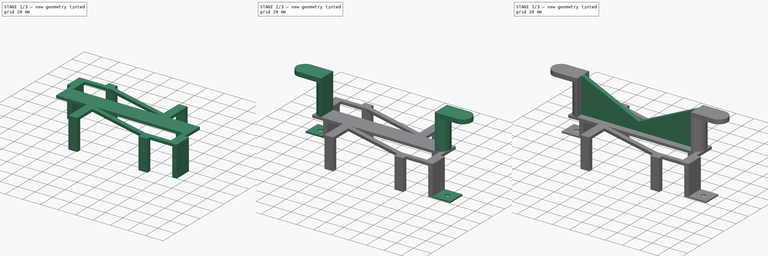
[diagram: build sequence overview — one tinted view per stage of 3, left to right]
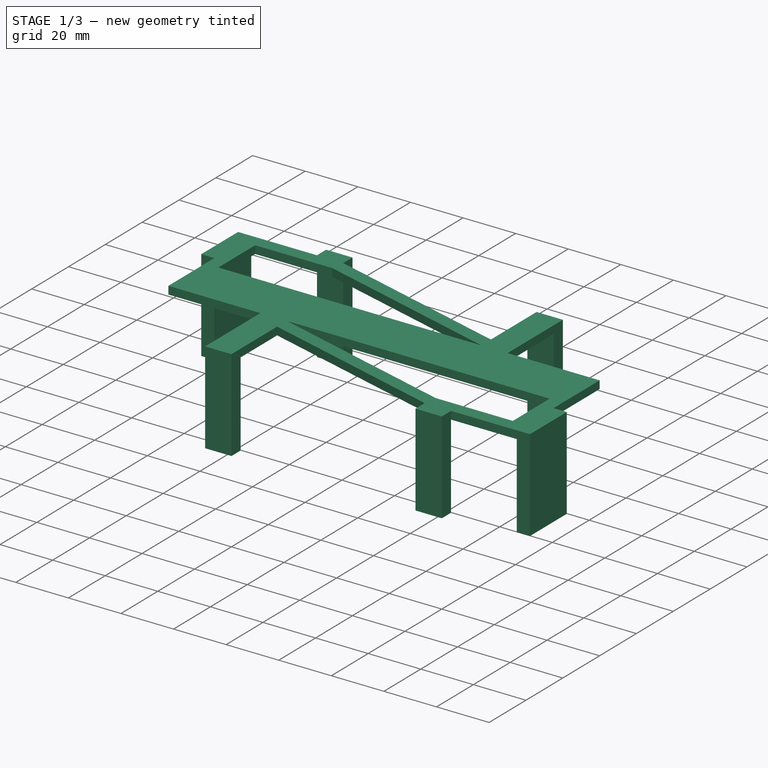
[diagram: stage 1 of 3 — iso view after this stage's code; geometry added in this stage tinted green]
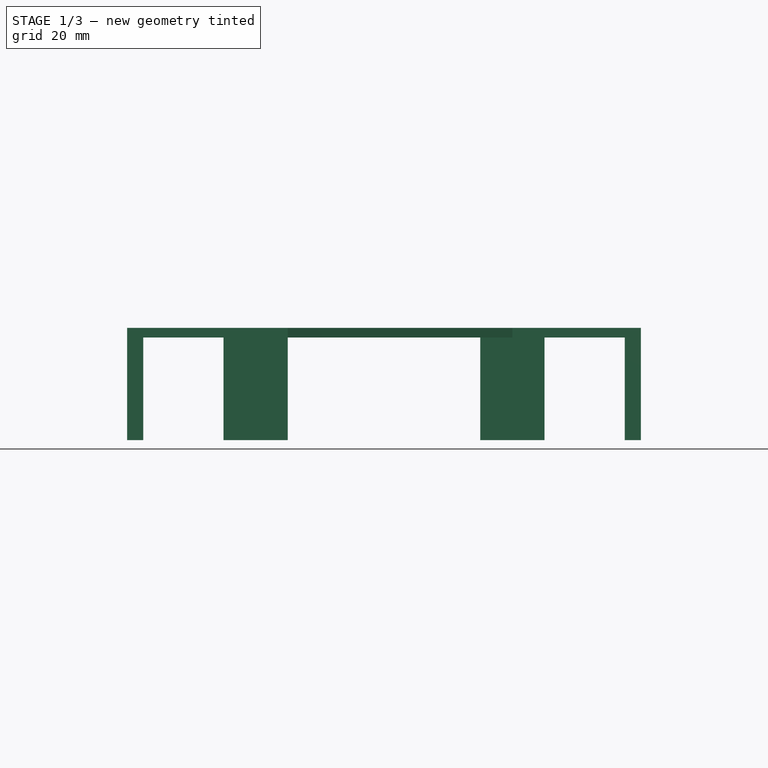
[diagram: stage 1 of 3 — front view after this stage's code; geometry added in this stage tinted green]
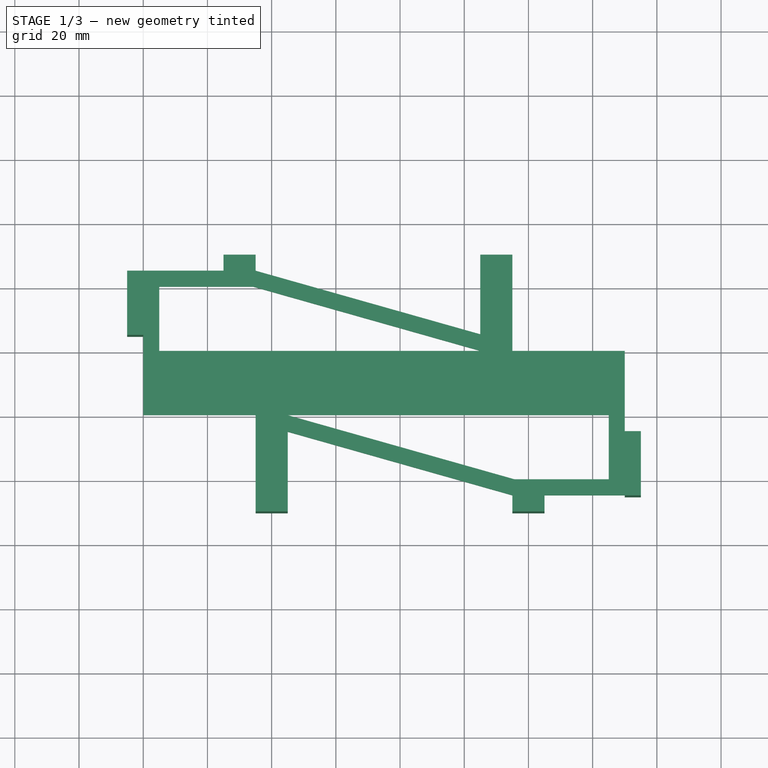
[diagram: stage 1 of 3 — top view after this stage's code; geometry added in this stage tinted green]
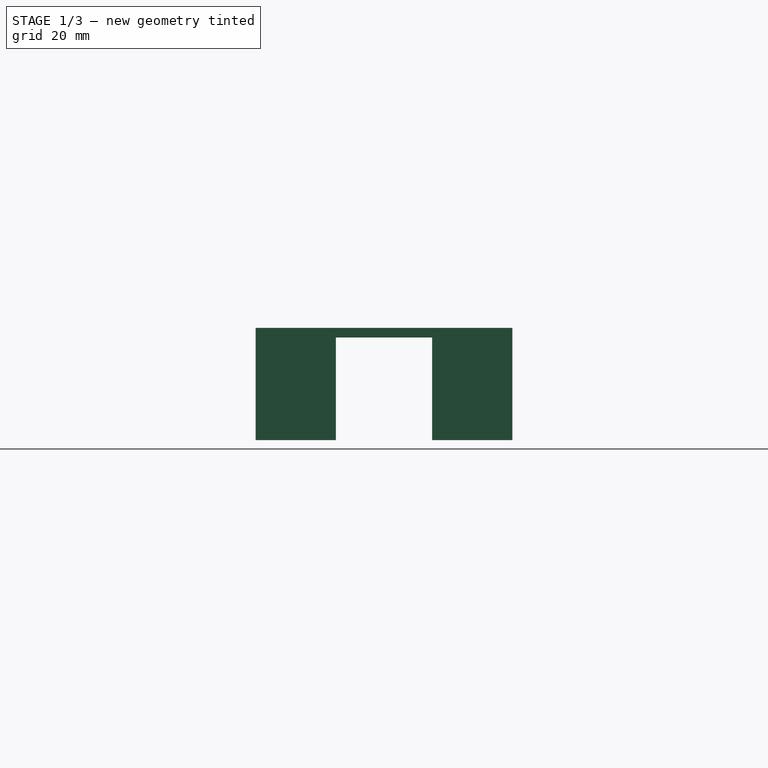
[diagram: stage 1 of 3 — right view after this stage's code; geometry added in this stage tinted green]
FCSTD DOCUMENT  (FreeCAD 0.20R)
Label: dockstation_powersupply_holder
License: All rights reserved
LicenseURL: http://en.wikipedia.org/wiki/All_rights_reserved
objects: Sketcher::SketchObject×7, PartDesign::Pad×7, PartDesign::Body×1
note: 22 computed .brp shape members not serialized (recipe doc carries the construction recipe); baked Part::Feature solids carry a one-line shape summary decoded from their .brp

FEATURE [Sketcher::SketchObject] Sketch
  FullyConstrained = false
  MapMode = 5
  Support = -> [XY_Plane]
  sketch-geometry (37):
    g0: LineSegment StartX=0 StartY=0 StartZ=0 EndX=0 EndY=45 EndZ=0
    g1: LineSegment StartX=0 StartY=45 StartZ=0 EndX=35 EndY=45 EndZ=0
    g2: LineSegment StartX=115 StartY=20 StartZ=0 EndX=150 EndY=20 EndZ=0
    g3: LineSegment StartX=150 StartY=20 StartZ=0 EndX=150 EndY=-25 EndZ=0
    g4: LineSegment StartX=150 StartY=-25 StartZ=0 EndX=115 EndY=-25 EndZ=0
    g5: LineSegment StartX=35 StartY=0 StartZ=0 EndX=0 EndY=0 EndZ=0
    g6: LineSegment StartX=0 StartY=10.0131 StartZ=0 EndX=150 EndY=10.0131 EndZ=0
    g7: LineSegment StartX=115 StartY=-25 StartZ=0 EndX=0 EndY=-25 EndZ=0
    g8: LineSegment StartX=0 StartY=-25 StartZ=0 EndX=0 EndY=0 EndZ=0
    g9: LineSegment StartX=5 StartY=40 StartZ=0 EndX=5 EndY=20 EndZ=0
    g10: LineSegment StartX=5 StartY=20 StartZ=0 EndX=105 EndY=20 EndZ=0
    g11: LineSegment StartX=105 StartY=20 StartZ=0 EndX=34.3063 EndY=40 EndZ=0
    g12: LineSegment StartX=34.3063 StartY=40 StartZ=0 EndX=5 EndY=40 EndZ=0
    g13: LineSegment StartX=45 StartY=0 StartZ=0 EndX=115.694 EndY=-20 EndZ=0
    g14: LineSegment StartX=115.694 StartY=-20 StartZ=0 EndX=145 EndY=-20 EndZ=0
    g15: LineSegment StartX=145 StartY=-20 StartZ=0 EndX=145 EndY=0 EndZ=0
    g16: LineSegment StartX=145 StartY=0 StartZ=0 EndX=45 EndY=0 EndZ=0
    g17: LineSegment StartX=105 StartY=20 StartZ=0 EndX=115 EndY=20 EndZ=0
    g18: LineSegment StartX=5 StartY=20 StartZ=0 EndX=0 EndY=20 EndZ=0
    g19: LineSegment StartX=5 StartY=40 StartZ=0 EndX=5 EndY=45 EndZ=0
    g20: LineSegment StartX=145 StartY=-20 StartZ=0 EndX=150 EndY=-20 EndZ=0
    g21: LineSegment StartX=145 StartY=-20 StartZ=0 EndX=145 EndY=-25 EndZ=0
    g22: LineSegment StartX=105 StartY=20 StartZ=0 EndX=106.361 EndY=24.8112 EndZ=0
    g23: LineSegment StartX=45 StartY=0 StartZ=0 EndX=43.6389 EndY=-4.81117 EndZ=0
    g24: LineSegment StartX=35 StartY=45 StartZ=0 EndX=35 EndY=-25 EndZ=0
    g25: LineSegment StartX=8.54489 StartY=0 StartZ=0 EndX=8.54489 EndY=-25 EndZ=0
    g26: LineSegment StartX=35 StartY=0 StartZ=0 EndX=35 EndY=-25 EndZ=0
    g27: LineSegment StartX=35 StartY=-25 StartZ=0 EndX=45 EndY=-25 EndZ=0
    g28: LineSegment StartX=45 StartY=-25 StartZ=0 EndX=45 EndY=-5.19625 EndZ=0
    g29: LineSegment StartX=45 StartY=-5.19625 StartZ=0 EndX=115 EndY=-25 EndZ=0
    g30: LineSegment StartX=115 StartY=20 StartZ=0 EndX=115 EndY=45 EndZ=0
    g31: LineSegment StartX=115 StartY=45 StartZ=0 EndX=105 EndY=45 EndZ=0
    g32: LineSegment StartX=105 StartY=45 StartZ=0 EndX=105 EndY=25.1962 EndZ=0
    g33: LineSegment StartX=105 StartY=25.1962 StartZ=0 EndX=35 EndY=45 EndZ=0
    g34: LineSegment StartX=35 StartY=45 StartZ=0 EndX=105 EndY=45 EndZ=0
    g35: LineSegment StartX=105 StartY=25.1962 StartZ=0 EndX=105 EndY=20 EndZ=0
    g36: LineSegment StartX=45 StartY=0 StartZ=0 EndX=45 EndY=-5.19625 EndZ=0
  constraints (105):
    c: Coincident(g-1,g0)
    c: Coincident(g0,g1)
    c: Coincident(g2,g3)
    c: Coincident(g3,g4)
    c: Coincident(g5,g0)
    c: Equal(g5,g1)
    c: Equal(g1,g2)
    c: Equal(g2,g4)
    c: Equal(g3,g0)
    c: Vertical(g0)
    c: Vertical(g3)
    c: Horizontal(g2)
    c: Horizontal(g4)
    c: Horizontal(g1)
    c: Horizontal(g5)
    c: Distance(g1) = 35
    c: PointOnObject(g6,g0)
    c: PointOnObject(g6,g3)
    c: Horizontal(g6)
    c: Distance(g6) = 150
    c: Coincident(g7,g4)
    c: PointOnObject(g7,g-2)
    c: Horizontal(g7)
    c: Coincident(g8,g7)
    c: Coincident(g8,g0)
    c: Vertical(g9)
    c: Coincident(g9,g10)
    c: Horizontal(g10)
    c: Coincident(g10,g11)
    c: Coincident(g11,g12)
    c: Coincident(g12,g9)
    c: Horizontal(g12)
    c: PointOnObject(g13,g-1)
    c: Coincident(g13,g14)
    c: Horizontal(g14)
    c: Coincident(g14,g15)
    c: Vertical(g15)
    c: Coincident(g15,g16)
    c: Coincident(g16,g13)
    c: Coincident(g17,g10)
    c: Horizontal(g17)
    c: Coincident(g17,g2)
    c: Horizontal(g16)
    c: Coincident(g18,g9)
    c: PointOnObject(g18,g0)
    c: Horizontal(g18)
    c: Coincident(g19,g9)
    c: PointOnObject(g19,g1)
    c: Vertical(g19)
    c: Coincident(g20,g14)
    c: PointOnObject(g20,g3)
    c: Horizontal(g20)
    c: Coincident(g21,g14)
    c: PointOnObject(g21,g4)
    c: Vertical(g21)
    c: Equal(g20,g21)
    c: Equal(g21,g18)
    c: Equal(g18,g19)
    c: Distance(g20) = 5
    c: Coincident(g22,g10)
    c: Coincident(g23,g13)
    c: Equal(g22,g23)
    c: Equal(g23,g19)
    c: Coincident(g24,g1)
    c: PointOnObject(g24,g7)
    c: Vertical(g24)
    c: Distance(g24) = 70
    c: PointOnObject(g25,g5)
    c: PointOnObject(g25,g7)
    c: Vertical(g25)
    c: Distance(g25) = 25
    c: Coincident(g5,g26)
    c: PointOnObject(g26,g7)
    c: Vertical(g26)
    c: Coincident(g26,g27)
    c: Horizontal(g27)
    c: Coincident(g27,g28)
    c: Vertical(g28)
    c: Coincident(g28,g29)
    c: Coincident(g29,g4)
    c: PointOnObject(g23,g29)
    c: Distance(g27) = 10
    c: Coincident(g2,g30)
    c: Vertical(g30)
    c: Coincident(g30,g31)
    c: Horizontal(g31)
    c: Coincident(g31,g32)
    c: Vertical(g32)
    c: Coincident(g32,g33)
    c: Coincident(g33,g1)
    c: PointOnObject(g22,g33)
    c: Coincident(g34,g1)
    c: Coincident(g34,g31)
    c: Horizontal(g34)
    c: Equal(g31,g27)
    c: Perpendicular(g33,g22)
    c: Perpendicular(g29,g23)
    c: Parallel(g29,g13)
    c: Parallel(g11,g33)
    c: Coincident(g35,g32)
    c: Coincident(g35,g10)
    c: Vertical(g35)
    c: Coincident(g36,g13)
    c: Coincident(g36,g28)
    c: Vertical(g36)
FEATURE [PartDesign::Pad] Pad
  Direction = (0,0,1)
  Length = 3
  Length2 = 10
  Profile = -> Sketch
  ReferenceAxis = -> Sketch [N_Axis]
  Type = 0
FEATURE [Sketcher::SketchObject] Sketch001
  ExternalGeometry = -> [Pad]
  FullyConstrained = true
  MapMode = 5
  Placement = pos=(0,0,3) rot=(0,0,1;0rad)
  Support = -> [Pad]
  sketch-geometry (24):
    g0: LineSegment StartX=0 StartY=45 StartZ=0 EndX=-5 EndY=45 EndZ=0
    g1: LineSegment StartX=-5 StartY=45 StartZ=0 EndX=-5 EndY=25 EndZ=0
    g2: LineSegment StartX=-5 StartY=25 StartZ=0 EndX=0 EndY=25 EndZ=0
    g3: LineSegment StartX=0 StartY=25 StartZ=0 EndX=0 EndY=45 EndZ=0
    g4: LineSegment StartX=150 StartY=-25 StartZ=0 EndX=155 EndY=-25 EndZ=0
    g5: LineSegment StartX=155 StartY=-25 StartZ=0 EndX=155 EndY=-5 EndZ=0
    g6: LineSegment StartX=155 StartY=-5 StartZ=0 EndX=150 EndY=-5 EndZ=0
    g7: LineSegment StartX=150 StartY=-5 StartZ=0 EndX=150 EndY=-25 EndZ=0
    g8: LineSegment StartX=115 StartY=-25 StartZ=0 EndX=125 EndY=-25 EndZ=0
    g9: LineSegment StartX=125 StartY=-25 StartZ=0 EndX=125 EndY=-30 EndZ=0
    g10: LineSegment StartX=125 StartY=-30 StartZ=0 EndX=115 EndY=-30 EndZ=0
    g11: LineSegment StartX=115 StartY=-30 StartZ=0 EndX=115 EndY=-25 EndZ=0
    g12: LineSegment StartX=35 StartY=-25 StartZ=0 EndX=45 EndY=-25 EndZ=0
    g13: LineSegment StartX=45 StartY=-25 StartZ=0 EndX=45 EndY=-30 EndZ=0
    g14: LineSegment StartX=45 StartY=-30 StartZ=0 EndX=35 EndY=-30 EndZ=0
    g15: LineSegment StartX=35 StartY=-30 StartZ=0 EndX=35 EndY=-25 EndZ=0
    g16: LineSegment StartX=105 StartY=45 StartZ=0 EndX=115 EndY=45 EndZ=0
    g17: LineSegment StartX=115 StartY=45 StartZ=0 EndX=115 EndY=50 EndZ=0
    g18: LineSegment StartX=115 StartY=50 StartZ=0 EndX=105 EndY=50 EndZ=0
    g19: LineSegment StartX=105 StartY=50 StartZ=0 EndX=105 EndY=45 EndZ=0
    g20: LineSegment StartX=35 StartY=45 StartZ=0 EndX=25 EndY=45 EndZ=0
    g21: LineSegment StartX=25 StartY=45 StartZ=0 EndX=25 EndY=50 EndZ=0
    g22: LineSegment StartX=25 StartY=50 StartZ=0 EndX=35 EndY=50 EndZ=0
    g23: LineSegment StartX=35 StartY=50 StartZ=0 EndX=35 EndY=45 EndZ=0
  constraints (64):
    c: Coincident(g0,g1)
    c: Coincident(g1,g2)
    c: Coincident(g2,g3)
    c: Coincident(g3,g0)
    c: Horizontal(g0)
    c: Horizontal(g2)
    c: Vertical(g1)
    c: Vertical(g3)
    c: Coincident(g0,g-6)
    c: Coincident(g4,g5)
    c: Coincident(g5,g6)
    c: Coincident(g6,g7)
    c: Coincident(g7,g4)
    c: Horizontal(g4)
    c: Horizontal(g6)
    c: Vertical(g5)
    c: Vertical(g7)
    c: Coincident(g4,g-8)
    c: Coincident(g8,g9)
    c: Coincident(g9,g10)
    c: Coincident(g10,g11)
    c: Coincident(g11,g8)
    c: Horizontal(g10)
    c: Vertical(g9)
    c: Vertical(g11)
    c: Coincident(g8,g-8)
    c: Coincident(g12,g13)
    c: Coincident(g13,g14)
    c: Coincident(g14,g15)
    c: Coincident(g15,g12)
    c: Horizontal(g14)
    c: Vertical(g13)
    c: Vertical(g15)
    c: Coincident(g12,g-7)
    c: Coincident(g16,g17)
    c: Coincident(g17,g18)
    c: Coincident(g18,g19)
    c: Coincident(g19,g16)
    c: Horizontal(g18)
    c: Vertical(g17)
    c: Vertical(g19)
    c: Coincident(g16,g-5)
    c: Coincident(g-5,g16)
    c: Coincident(g-7,g12)
    c: Coincident(g20,g21)
    c: Coincident(g21,g22)
    c: Coincident(g22,g23)
    c: Coincident(g23,g20)
    c: Horizontal(g22)
    c: Vertical(g21)
    c: Vertical(g23)
    c: Coincident(g20,g-6)
    c: Equal(g22,g18)
    c: Equal(g18,g10)
    c: Horizontal(g8)
    c: Horizontal(g20)
    c: Equal(g21,g15)
    c: Equal(g15,g11)
    c: Equal(g11,g19)
    c: Equal(g19,g4)
    c: Equal(g4,g0)
    c: Distance(g15) = 5
    c: Equal(g1,g5)
    c: Distance(g1) = 20
FEATURE [PartDesign::Pad] Pad001
  BaseFeature = -> Pad
  Direction = (0,0,1)
  Length = 35
  Length2 = 10
  Profile = -> Sketch001
  ReferenceAxis = -> Sketch001 [N_Axis]
  Reversed = true
  Type = 0
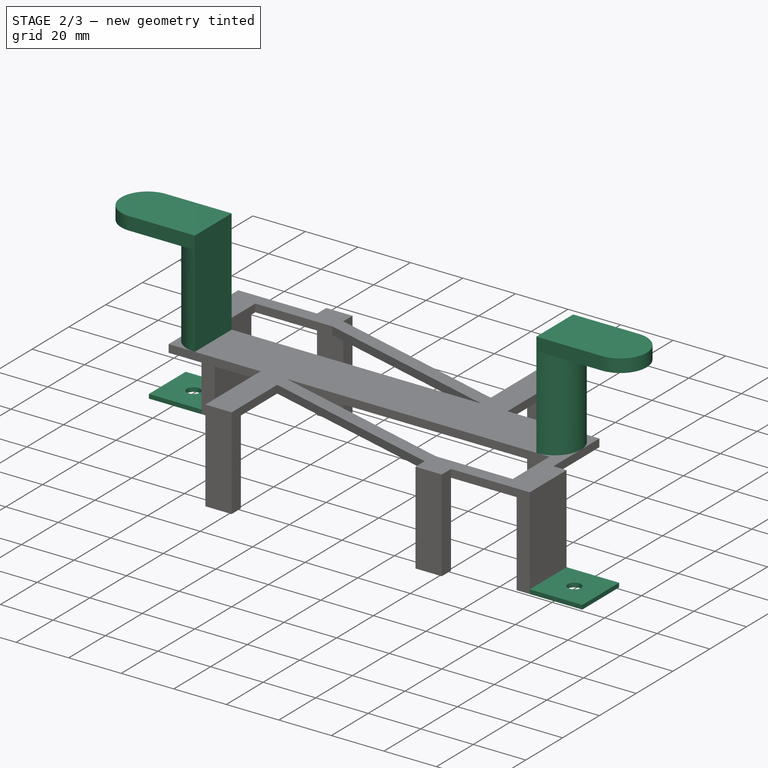
[diagram: stage 2 of 3 — iso view after this stage's code; geometry added in this stage tinted green]
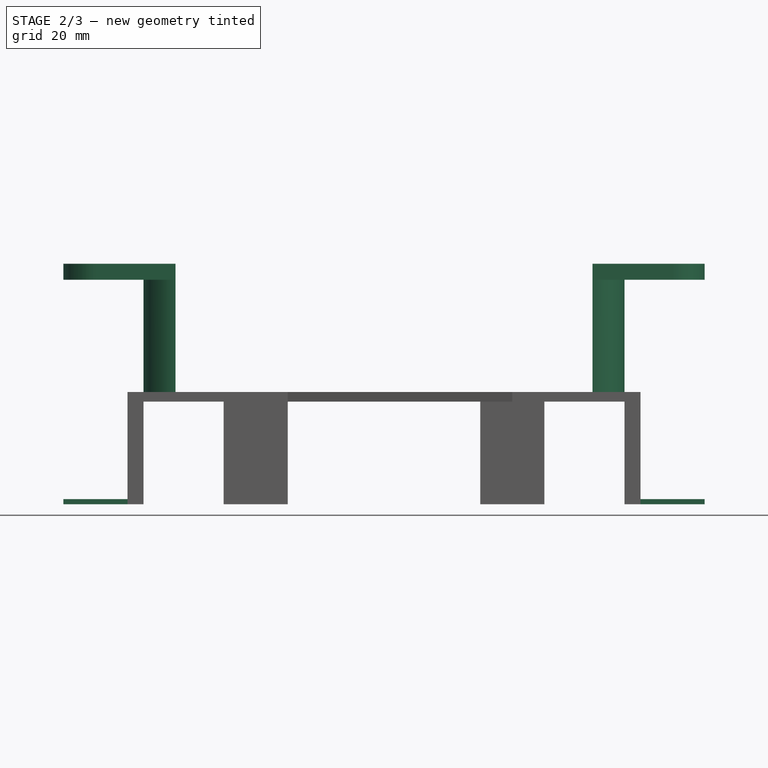
[diagram: stage 2 of 3 — front view after this stage's code; geometry added in this stage tinted green]
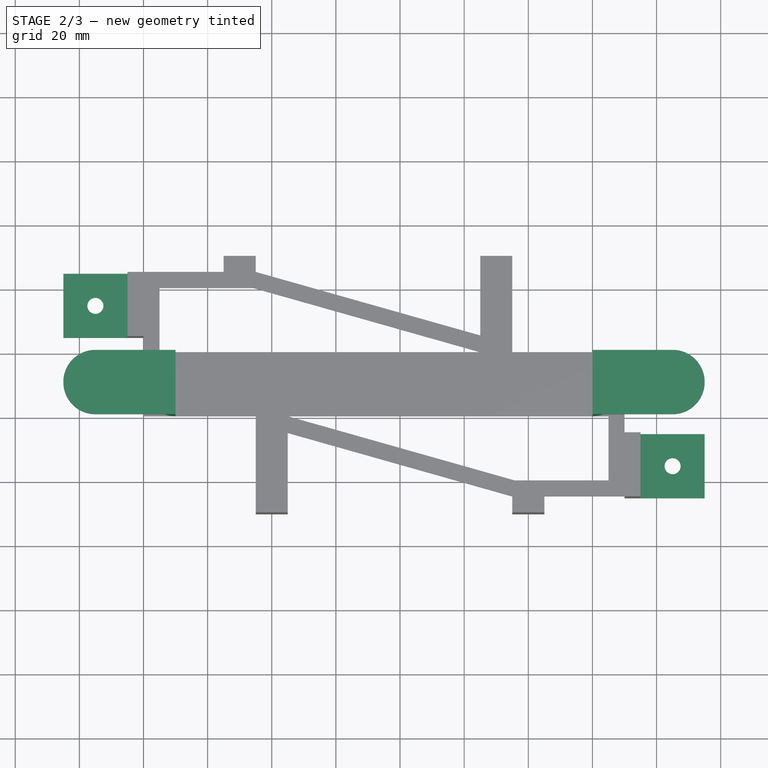
[diagram: stage 2 of 3 — top view after this stage's code; geometry added in this stage tinted green]
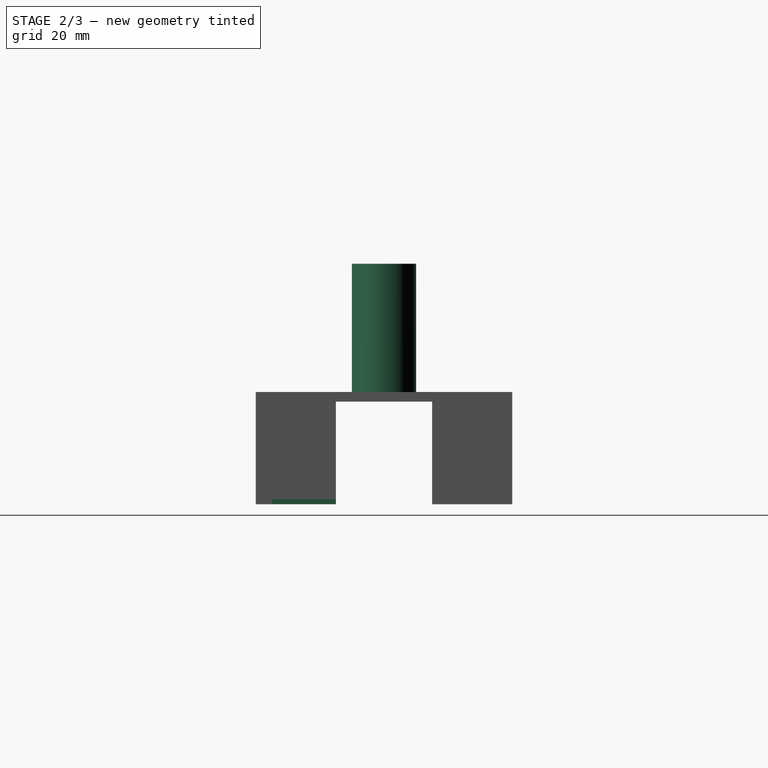
[diagram: stage 2 of 3 — right view after this stage's code; geometry added in this stage tinted green]
FEATURE [Sketcher::SketchObject] Sketch002
  ExternalGeometry = -> [Pad001]
  FullyConstrained = true
  MapMode = 5
  Placement = pos=(0,0,-32) rot=(1,0,0;3.14159rad)
  Support = -> [Pad001]
  sketch-geometry (16):
    g0: LineSegment StartX=-5 StartY=-25 StartZ=0 EndX=-25 EndY=-25 EndZ=0
    g1: LineSegment StartX=-25 StartY=-25 StartZ=0 EndX=-25 EndY=-45 EndZ=0
    g2: LineSegment StartX=-25 StartY=-45 StartZ=0 EndX=-5 EndY=-45 EndZ=0
    g3: LineSegment StartX=-5 StartY=-45 StartZ=0 EndX=-5 EndY=-25 EndZ=0
    g4: LineSegment StartX=155 StartY=25 StartZ=0 EndX=175 EndY=25 EndZ=0
    g5: LineSegment StartX=175 StartY=25 StartZ=0 EndX=175 EndY=5 EndZ=0
    g6: LineSegment StartX=175 StartY=5 StartZ=0 EndX=155 EndY=5 EndZ=0
    g7: LineSegment StartX=155 StartY=5 StartZ=0 EndX=155 EndY=25 EndZ=0
    g8: LineSegment StartX=155 StartY=25 StartZ=0 EndX=165 EndY=15 EndZ=0
    g9: LineSegment StartX=165 StartY=15 StartZ=0 EndX=175 EndY=25 EndZ=0
    g10: LineSegment StartX=165 StartY=15 StartZ=0 EndX=175 EndY=5 EndZ=0
    g11: Circle CenterX=165 CenterY=15 CenterZ=0 NormalX=0 NormalY=0 NormalZ=1 AngleXU=0 Radius=2.5
    g12: LineSegment StartX=-25 StartY=-25 StartZ=0 EndX=-15 EndY=-35 EndZ=0
    g13: LineSegment StartX=-15 StartY=-35 StartZ=0 EndX=-5 EndY=-45 EndZ=0
    g14: LineSegment StartX=-15 StartY=-35 StartZ=0 EndX=-25 EndY=-45 EndZ=0
    g15: Circle CenterX=-15 CenterY=-35 CenterZ=0 NormalX=0 NormalY=0 NormalZ=1 AngleXU=0 Radius=2.5
  constraints (38):
    c: Coincident(g0,g1)
    c: Coincident(g1,g2)
    c: Coincident(g2,g3)
    c: Coincident(g3,g0)
    c: Horizontal(g0)
    c: Horizontal(g2)
    c: Vertical(g1)
    c: Coincident(g0,g-3)
    c: Coincident(g4,g5)
    c: Coincident(g5,g6)
    c: Coincident(g6,g7)
    c: Coincident(g7,g4)
    c: Horizontal(g4)
    c: Horizontal(g6)
    c: Vertical(g5)
    c: Coincident(g4,g-4)
    c: Coincident(g2,g-3)
    c: Equal(g0,g1)
    c: Coincident(g-4,g6)
    c: Equal(g4,g5)
    c: Coincident(g8,g4)
    c: Coincident(g9,g8)
    c: Coincident(g9,g4)
    c: Coincident(g10,g8)
    c: Coincident(g10,g5)
    c: Equal(g10,g9)
    c: Equal(g9,g8)
    c: Coincident(g11,g8)
    c: Coincident(g12,g0)
    c: Coincident(g13,g12)
    c: Coincident(g13,g2)
    c: Coincident(g14,g12)
    c: Coincident(g14,g1)
    c: Equal(g14,g12)
    c: Equal(g12,g13)
    c: Coincident(g15,g12)
    c: Equal(g15,g11)
    c: Diameter(g15) = 5
FEATURE [PartDesign::Pad] Pad002
  BaseFeature = -> Pad001
  Direction = (0,0,-1)
  Length = 1.6
  Length2 = 10
  Profile = -> Sketch002
  ReferenceAxis = -> Sketch002 [N_Axis]
  Reversed = true
  Type = 0
FEATURE [Sketcher::SketchObject] Sketch003
  ExternalGeometry = -> [Pad002]
  FullyConstrained = true
  MapMode = 5
  Placement = pos=(0,0,3) rot=(0,0,1;0rad)
  Support = -> [Pad002]
  sketch-geometry (9):
    g0: LineSegment StartX=45 StartY=0 StartZ=0 EndX=45 EndY=10 EndZ=0
    g1: LineSegment StartX=45 StartY=10 StartZ=0 EndX=45 EndY=20 EndZ=0
    g2: LineSegment StartX=0 StartY=10 StartZ=0 EndX=150 EndY=10 EndZ=0
    g3: ArcOfCircle CenterX=10 CenterY=10 CenterZ=0 NormalX=0 NormalY=0 NormalZ=1 AngleXU=0 Radius=10 StartAngle=1.5708 EndAngle=4.71239
    g4: LineSegment StartX=10 StartY=20 StartZ=0 EndX=10 EndY=10 EndZ=0
    g5: LineSegment StartX=10 StartY=0 StartZ=0 EndX=10 EndY=10 EndZ=0
    g6: ArcOfCircle CenterX=140 CenterY=10 CenterZ=0 NormalX=0 NormalY=0 NormalZ=1 AngleXU=0 Radius=10 StartAngle=4.71239 EndAngle=7.85398
    g7: LineSegment StartX=140 StartY=0 StartZ=0 EndX=140 EndY=10 EndZ=0
    g8: LineSegment StartX=140 StartY=20 StartZ=0 EndX=140 EndY=10 EndZ=0
  constraints (28):
    c: Coincident(g0,g-4)
    c: Vertical(g0)
    c: Coincident(g1,g0)
    c: PointOnObject(g1,g-3)
    c: Vertical(g1)
    c: Equal(g1,g0)
    c: PointOnObject(g2,g-5)
    c: PointOnObject(g2,g-6)
    c: Horizontal(g2)
    c: PointOnObject(g0,g2)
    c: PointOnObject(g3,g-3)
    c: PointOnObject(g3,g-1)
    c: PointOnObject(g2,g3)
    c: Coincident(g4,g3)
    c: Coincident(g4,g3)
    c: Coincident(g5,g3)
    c: Coincident(g5,g3)
    c: Vertical(g5)
    c: Vertical(g4)
    c: PointOnObject(g6,g2)
    c: PointOnObject(g6,g-4)
    c: Coincident(g7,g6)
    c: Coincident(g7,g6)
    c: Vertical(g7)
    c: Coincident(g8,g6)
    c: Coincident(g8,g6)
    c: Vertical(g8)
    c: PointOnObject(g2,g6)
FEATURE [PartDesign::Pad] Pad003
  BaseFeature = -> Pad002
  Direction = (0,0,1)
  Length = 35
  Length2 = 10
  Profile = -> Sketch003
  ReferenceAxis = -> Sketch003 [N_Axis]
  Type = 0
FEATURE [Sketcher::SketchObject] Sketch004
  ExternalGeometry = -> [Pad003]
  FullyConstrained = true
  MapMode = 5
  Placement = pos=(0,0,38) rot=(0,0,1;0rad)
  Support = -> [Pad003]
  sketch-geometry (14):
    g0: LineSegment StartX=-25 StartY=25 StartZ=0 EndX=-25 EndY=10 EndZ=0
    g1: LineSegment StartX=-25 StartY=10 StartZ=0 EndX=10 EndY=10 EndZ=0
    g2: LineSegment StartX=175 StartY=-5 StartZ=0 EndX=175 EndY=10 EndZ=0
    g3: LineSegment StartX=175 StartY=10 StartZ=0 EndX=140 EndY=10 EndZ=0
    g4: LineSegment StartX=10 StartY=20 StartZ=0 EndX=10 EndY=2.9132e-12 EndZ=0
    g5: LineSegment StartX=10 StartY=2.9132e-12 StartZ=0 EndX=-15 EndY=2.9132e-12 EndZ=0
    g6: LineSegment StartX=10 StartY=20 StartZ=0 EndX=-15 EndY=20 EndZ=0
    g7: LineSegment StartX=-15 StartY=20 StartZ=0 EndX=-15 EndY=2.9132e-12 EndZ=0
    g8: ArcOfCircle CenterX=-15 CenterY=10 CenterZ=0 NormalX=0 NormalY=0 NormalZ=1 AngleXU=0 Radius=10 StartAngle=1.5708 EndAngle=4.71239
    g9: LineSegment StartX=140 StartY=0 StartZ=0 EndX=140 EndY=20 EndZ=0
    g10: LineSegment StartX=140 StartY=20 StartZ=0 EndX=165 EndY=20 EndZ=0
    g11: LineSegment StartX=140 StartY=0 StartZ=0 EndX=165 EndY=0 EndZ=0
    g12: LineSegment StartX=165 StartY=20 StartZ=0 EndX=165 EndY=0 EndZ=0
    g13: ArcOfCircle CenterX=165 CenterY=10 CenterZ=0 NormalX=0 NormalY=0 NormalZ=1 AngleXU=0 Radius=10 StartAngle=4.71239 EndAngle=7.85398
  constraints (37):
    c: Coincident(g0,g-7)
    c: Vertical(g0)
    c: Coincident(g1,g0)
    c: Coincident(g1,g-4)
    c: Horizontal(g1)
    c: Coincident(g2,g-8)
    c: Vertical(g2)
    c: Coincident(g3,g2)
    c: Coincident(g3,g-6)
    c: Horizontal(g3)
    c: Coincident(g4,g-3)
    c: Coincident(g4,g-4)
    c: Horizontal(g5)
    c: Coincident(g5,g4)
    c: Coincident(g6,g4)
    c: Horizontal(g6)
    c: Coincident(g7,g6)
    c: Coincident(g7,g5)
    c: Vertical(g7)
    c: PointOnObject(g8,g7)
    c: Coincident(g8,g6)
    c: Coincident(g8,g5)
    c: PointOnObject(g0,g8)
    c: PointOnObject(g9,g-1)
    c: Coincident(g9,g-5)
    c: Vertical(g9)
    c: Coincident(g10,g9)
    c: Horizontal(g10)
    c: Coincident(g11,g9)
    c: Horizontal(g11)
    c: Coincident(g12,g10)
    c: Coincident(g12,g11)
    c: Vertical(g12)
    c: PointOnObject(g13,g12)
    c: Coincident(g13,g10)
    c: Coincident(g13,g11)
    c: PointOnObject(g2,g13)
FEATURE [PartDesign::Pad] Pad004
  BaseFeature = -> Pad003
  Direction = (0,0,1)
  Length = 5
  Length2 = 10
  Profile = -> Sketch004
  ReferenceAxis = -> Sketch004 [N_Axis]
  Type = 0
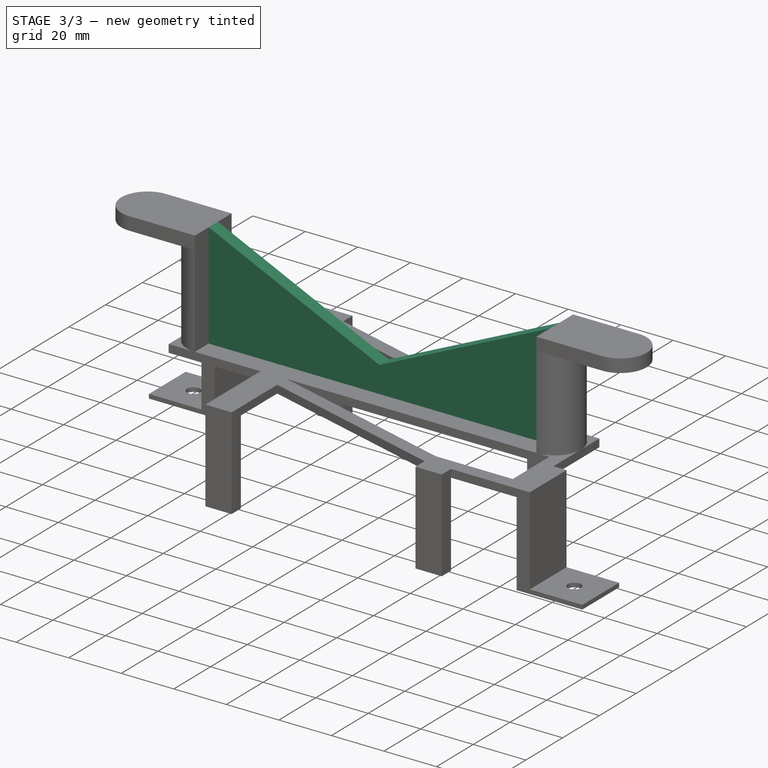
[diagram: stage 3 of 3 — iso view after this stage's code; geometry added in this stage tinted green]
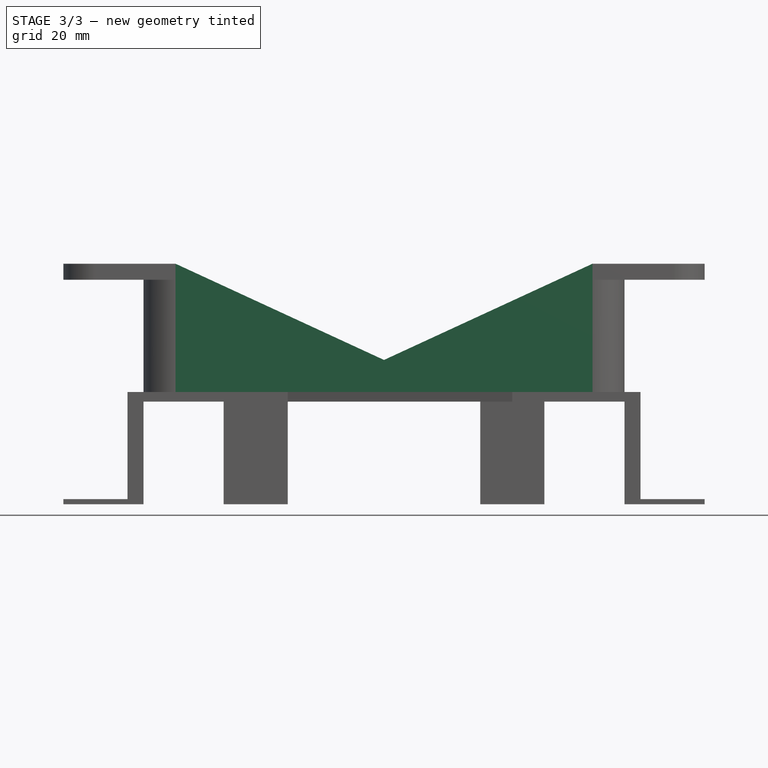
[diagram: stage 3 of 3 — front view after this stage's code; geometry added in this stage tinted green]
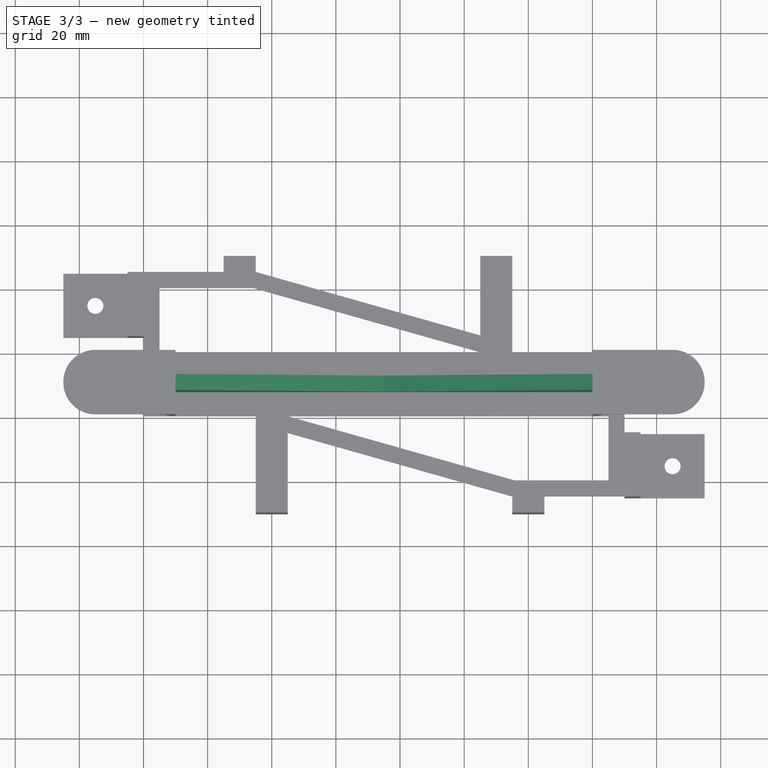
[diagram: stage 3 of 3 — top view after this stage's code; geometry added in this stage tinted green]
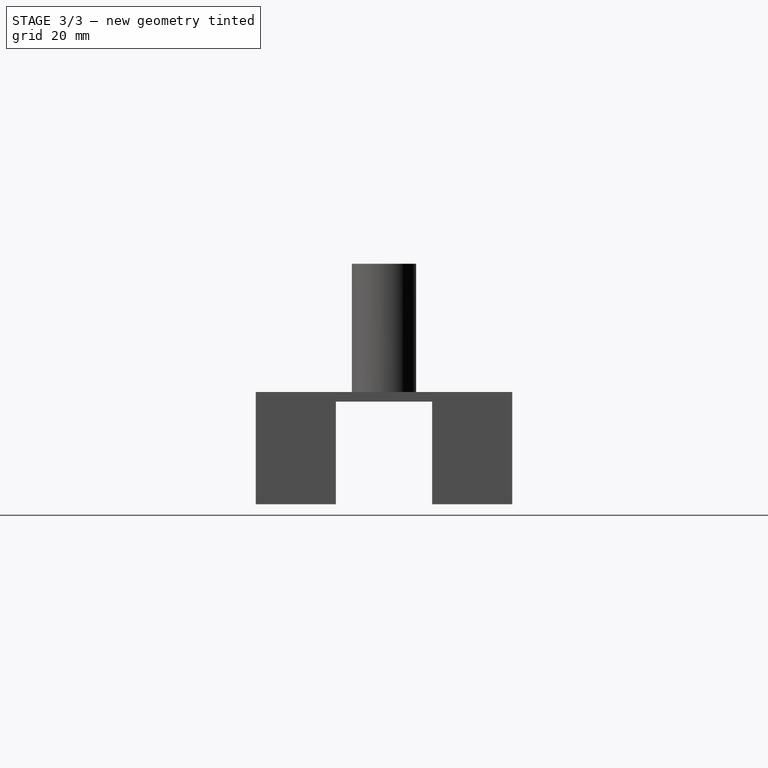
[diagram: stage 3 of 3 — right view after this stage's code; geometry added in this stage tinted green]
FEATURE [Sketcher::SketchObject] Sketch005
  ExternalGeometry = -> [Pad004]
  FullyConstrained = true
  MapMode = 5
  Placement = pos=(0,0,3) rot=(0,0,1;0rad)
  Support = -> [Pad004]
  sketch-geometry (7):
    g0: LineSegment StartX=10 StartY=20 StartZ=0 EndX=10 EndY=12.5 EndZ=0
    g1: LineSegment StartX=10 StartY=12.5 StartZ=0 EndX=10 EndY=7.5 EndZ=0
    g2: LineSegment StartX=10 StartY=7.5 StartZ=0 EndX=10 EndY=2.9132e-12 EndZ=0
    g3: LineSegment StartX=10 StartY=12.5 StartZ=0 EndX=140 EndY=12.5 EndZ=0
    g4: LineSegment StartX=140 StartY=12.5 StartZ=0 EndX=140 EndY=7.5 EndZ=0
    g5: LineSegment StartX=140 StartY=7.5 StartZ=0 EndX=10 EndY=7.5 EndZ=0
    g6: LineSegment StartX=10 StartY=7.5 StartZ=0 EndX=10 EndY=12.5 EndZ=0
  constraints (18):
    c: Coincident(g0,g-3)
    c: Coincident(g1,g0)
    c: Coincident(g2,g1)
    c: Coincident(g2,g-3)
    c: Vertical(g1)
    c: Equal(g0,g2)
    c: Distance(g1) = 5
    c: Vertical(g0)
    c: Coincident(g3,g4)
    c: Coincident(g4,g5)
    c: Coincident(g5,g6)
    c: Coincident(g6,g3)
    c: Horizontal(g3)
    c: Horizontal(g5)
    c: Vertical(g4)
    c: Coincident(g3,g0)
    c: PointOnObject(g4,g-4)
    c: Coincident(g1,g5)
FEATURE [PartDesign::Pad] Pad005
  BaseFeature = -> Pad004
  Direction = (0,0,1)
  Length = 10
  Length2 = 10
  Profile = -> Sketch005
  ReferenceAxis = -> Sketch005 [N_Axis]
  Type = 0
FEATURE [Sketcher::SketchObject] Sketch006
  ExternalGeometry = -> [Pad005]
  FullyConstrained = true
  MapMode = 5
  Placement = pos=(0,7.5,0) rot=(1,0,0;1.5708rad)
  Support = -> [Pad005]
  sketch-geometry (6):
    g0: LineSegment StartX=10 StartY=43 StartZ=0 EndX=10 EndY=13 EndZ=0
    g1: LineSegment StartX=10 StartY=13 StartZ=0 EndX=75 EndY=13 EndZ=0
    g2: LineSegment StartX=75 StartY=13 StartZ=0 EndX=140 EndY=13 EndZ=0
    g3: LineSegment StartX=140 StartY=13 StartZ=0 EndX=140 EndY=43 EndZ=0
    g4: LineSegment StartX=140 StartY=43 StartZ=0 EndX=75 EndY=13 EndZ=0
    g5: LineSegment StartX=75 StartY=13 StartZ=0 EndX=10 EndY=43 EndZ=0
  constraints (13):
    c: Coincident(g-6,g0)
    c: Coincident(g0,g-5)
    c: Coincident(g0,g1)
    c: Horizontal(g1)
    c: Coincident(g1,g2)
    c: Coincident(g2,g-5)
    c: Equal(g1,g2)
    c: Coincident(g2,g3)
    c: Coincident(g3,g-7)
    c: Coincident(g3,g4)
    c: Coincident(g4,g5)
    c: Coincident(g5,g0)
    c: Coincident(g4,g1)
FEATURE [PartDesign::Pad] Pad006
  BaseFeature = -> Pad005
  Direction = (0,-1,2e-16)
  Length = 5
  Length2 = 10
  Profile = -> Sketch006
  ReferenceAxis = -> Sketch006 [N_Axis]
  Reversed = true
  Type = 0
FEATURE [PartDesign::Body] Body
  Group = -> [Sketch,Pad,Sketch001,Pad001,Sketch002,Pad002,Sketch003,Pad003,Sketch004,Pad004,Sketch005,Pad005,Sketch006,Pad006]
  Origin = -> Origin
  Tip = -> Pad006
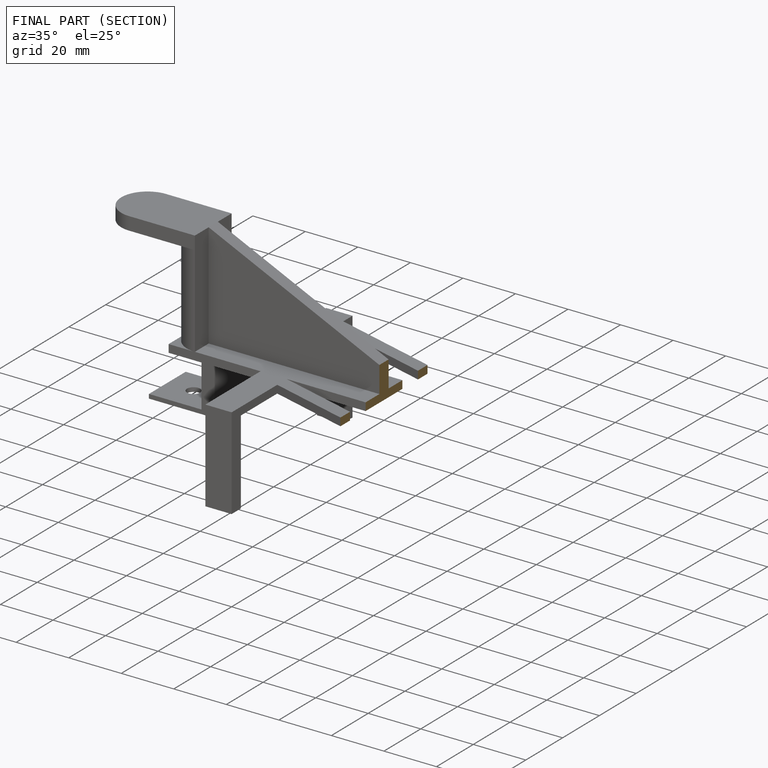
[diagram: finished part — half-section view (interior)]
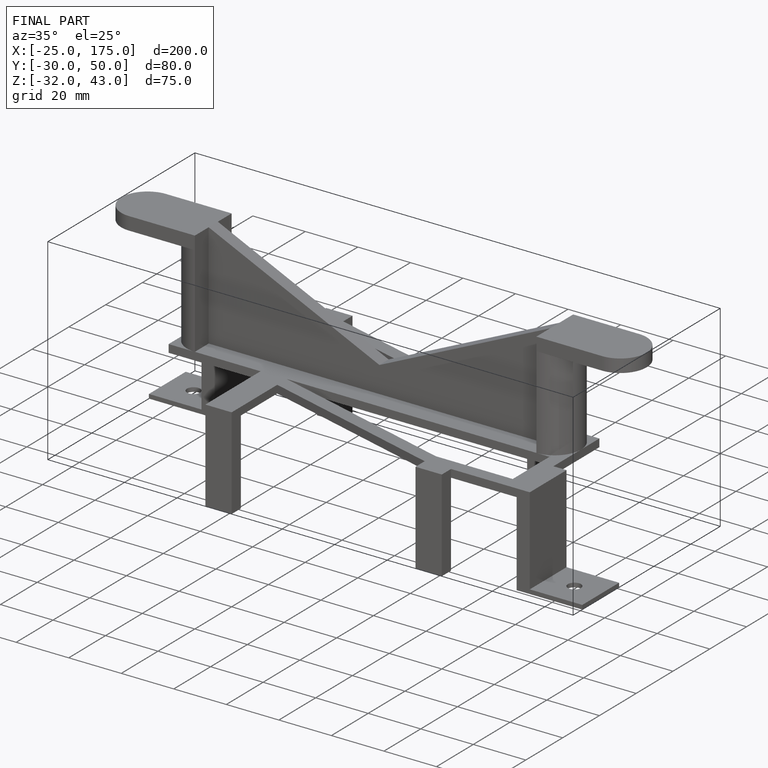
[diagram: finished part — iso view with bounding-box wireframe]
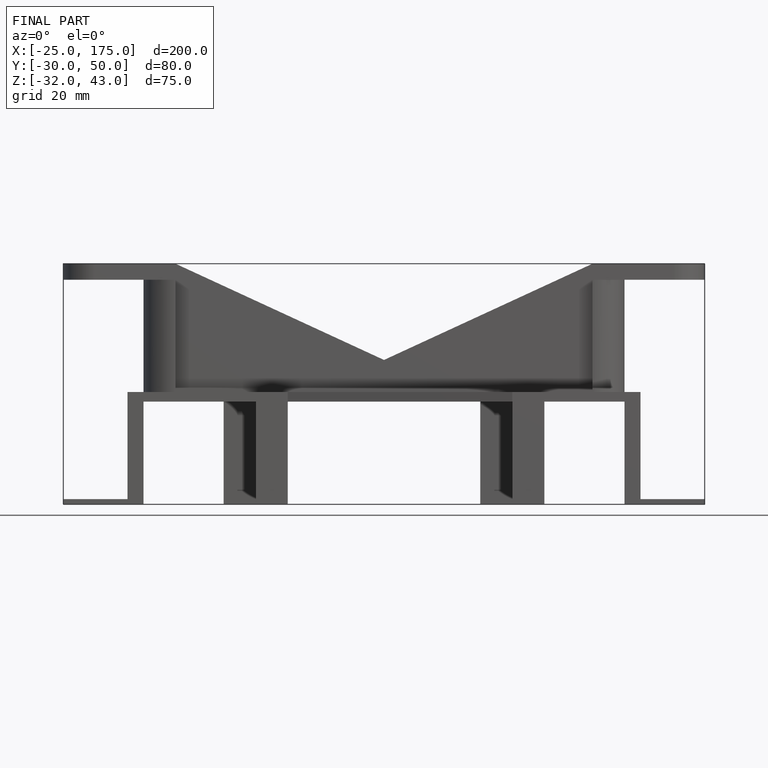
[diagram: finished part — front view with bounding-box wireframe]
